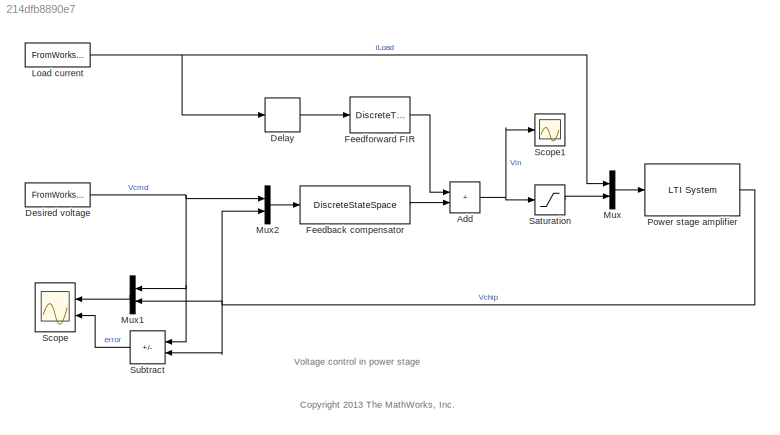
MODEL slx_214dfb8890e7
KIND model
CONFIG AbsTol = auto
CONFIG EnableMultiTasking = on
CONFIG FixedStep = auto
CONFIG MaxStep = auto
CONFIG MinStep = auto
CONFIG PreLoadFcn = load PowerStageData
CONFIG RelTol = 1e-3
CONFIG SampleTimeConstraint = Unconstrained
CONFIG SolverName = FixedStepDiscrete
CONFIG StartTime = 0.0
CONFIG StopTime = 2e-4
BLOCK [Sum] Add
  IconShape = rectangular
  Ports = [2, 1]
BLOCK [Delay] Delay
  InputPortMap = u0
  Ports = [1, 1]
  SampleTime = Tm
BLOCK [FromWorkspace] Desired voltage
  SampleTime = Tm
  VariableName = vcmd
BLOCK [DiscreteStateSpace] Feedback compensator
  A = 0.5*eye(3)
  B = ones(3,2)
  C = ones(1,3)
  D = [0 0]
  SampleTime = Tm
BLOCK [DiscreteTransferFcn] Feedforward FIR
  Denominator = [1 0]
  InputPortMap = u0
  Numerator = [0 0]
  Ports = [1, 1]
  SampleTime = Tm
BLOCK [FromWorkspace] Load current
  SampleTime = Tm
  VariableName = iload
BLOCK [Mux] Mux
  DisplayOption = bar
  Inputs = 2
  Ports = [2, 1]
BLOCK [Mux] Mux1
  DisplayOption = bar
  Inputs = 2
  Ports = [2, 1]
BLOCK [Mux] Mux2
  DisplayOption = bar
  Inputs = 2
  Ports = [2, 1]
BLOCK [Reference] Power stage amplifier   REF=cstblocks/LTI System
  Ports = [1, 1]
  SourceBlock = cstblocks/LTI System
  SourceProductBaseCode = CT
  SourceType = LTI Block
BLOCK [Saturate] Saturation
  LowerLimit = -Vmax
  UpperLimit = Vmax
BLOCK [Scope] Scope
  Floating = off
  NumInputPorts = 2
  Ports = [2]
  ScopeSpecificationString = C++SS(StrPVP('Location','[232, 357, 1256, 925]'),StrPVP('Open','off'),StrPVP('ZoomMode','yonly'),MxPVP('AxesTitles',54,'struct(''axes1'',''%<SignalLabel>'',''axes2'',''%<SignalLabel>'')'),MxPVP('ScopeGraphics',57,'struct(''FigureColor'',''[0.5 0.5 0.5]'',''AxesColor'',''[0 0 0]'',''AxesTickColor'',''[1 1 1]'',''LineColors'',''[1 1 0;1 0 1;0 1 1;1 0 0;0 1 0;0 0 1]'',''LineStyles'',''-|-|-|-|-|-'','...<+390ch>
BLOCK [Scope] Scope1
  Floating = off
  NumInputPorts = 1
  Ports = [1]
  ScopeSpecificationString = C++SS(StrPVP('Location','[188, 390, 512, 629]'),StrPVP('Open','off'),MxPVP('AxesTitles',54,'struct(''axes1'',''%<SignalLabel>'')'),StrPVP('ShowLegends','off'),StrPVP('SaveName','ScopeData1'),StrPVP('DataFormat','StructureWithTime'),StrPVP('BlockParamSampleTime','0'),StrPVP('LimitDataPoints','on'),StrPVP('Decimation','1'),StrPVP('BlockParamSampleInput','off'))
BLOCK [Sum] Subtract
  IconShape = rectangular
  Inputs = -+
  Ports = [2, 1]
ANNOTATION (root): <copyright redacted>
ANNOTATION (root): Voltage control in power stage
NET Add:1 -> Saturation:1, Scope1:1
LINE Delay:1 -> Feedforward FIR:1
NET Desired voltage:1 -> Mux1:1, Mux2:1, Subtract:1
LINE Feedback compensator:1 -> Add:2
LINE Feedforward FIR:1 -> Add:1
NET Load current:1 -> Delay:1, Mux:1
LINE Mux1:1 -> Scope:1
LINE Mux2:1 -> Feedback compensator:1
LINE Mux:1 -> Power stage amplifier :1
NET Power stage amplifier :1 -> Mux1:2, Mux2:2, Subtract:2
LINE Saturation:1 -> Mux:2
LINE Subtract:1 -> Scope:2
note: NET lines group one-source signal fan-out (src -> all destinations, sorted); 1:1 wires keep LINE
